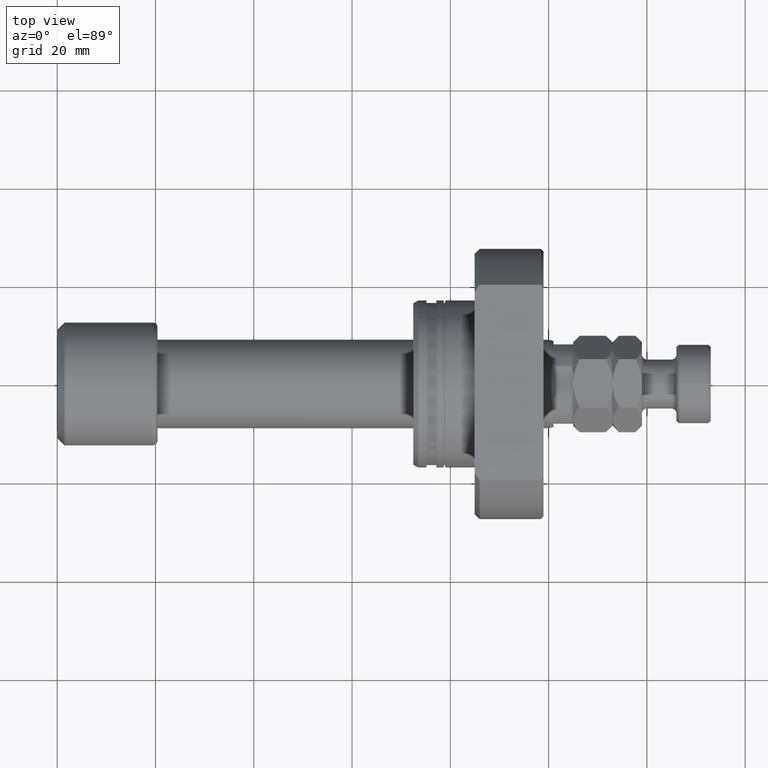
[diagram: clean part render]
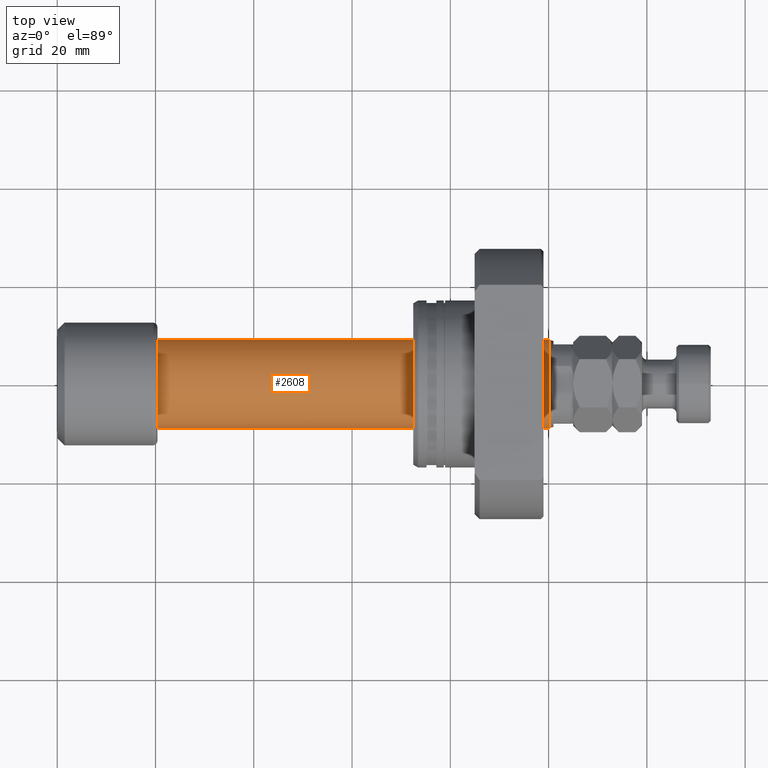
[diagram: same view with one face highlighted and labeled with its STEP entity id]
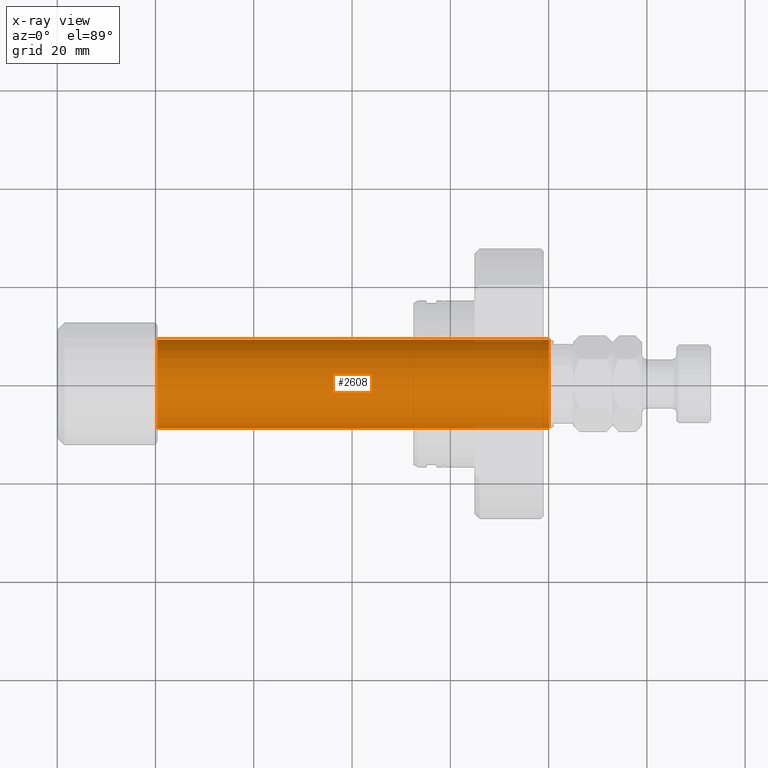
[diagram: x-ray of the same camera — body ghosted, the highlighted face saturated]
A machine part, top view. The second image highlights one B-rep face of the part: STEP entity #2608.
The next image is the same camera in x-ray: the body ghosted, the highlighted face saturated — about 1% of this face is hidden behind the body in this view.
In plain terms, the highlighted cylindrical surface (partial cylindrical patch) has radius 9 mm, axis along (-1, -0, -0).
Its self-contained STEP definition (entity closure, byte-faithful):
#349 = VECTOR ( 'NONE', #3285, 1000.000000000000000 ) ;
#417 = DIRECTION ( 'NONE',  ( -1.000000000000000000, -1.069542322069065801E-17, -0.000000000000000000 ) ) ;
#534 = ORIENTED_EDGE ( 'NONE', *, *, #4745, .F. ) ;
#1133 = CARTESIAN_POINT ( 'NONE',  ( 9.625880898621695591E-17, -9.000000000000095923, 0.000000000000000000 ) ) ;
#1279 = VERTEX_POINT ( 'NONE', #4490 ) ;
#1455 = DIRECTION ( 'NONE',  ( 0.000000000000000000, -1.000000000000000000, 0.000000000000000000 ) ) ;
#1584 = CARTESIAN_POINT ( 'NONE',  ( 0.000000000000000000, 0.000000000000000000, 0.000000000000000000 ) ) ;
#1585 = EDGE_CURVE ( 'NONE', #3094, #2404, #2987, .T. ) ;
#1691 = CARTESIAN_POINT ( 'NONE',  ( 100.0667575123237754, 9.000000000000195399, 1.102182119232641577E-15 ) ) ;
#1821 = CIRCLE ( 'NONE', #4738, 9.000000000000193623 ) ;
#1835 = VERTEX_POINT ( 'NONE', #1691 ) ;
#2058 = AXIS2_PLACEMENT_3D ( 'NONE', #3390, #4826, #1455 ) ;
#2178 = CARTESIAN_POINT ( 'NONE',  ( 100.0667575123237754, -9.000000000000191847, 0.000000000000000000 ) ) ;
#2205 = DIRECTION ( 'NONE',  ( -1.000000000000000000, -1.069542322069065801E-17, -0.000000000000000000 ) ) ;
#2250 = FACE_OUTER_BOUND ( 'NONE', #3063, .T. ) ;
#2404 = VERTEX_POINT ( 'NONE', #3134 ) ;
#2447 = EDGE_CURVE ( 'NONE', #1835, #1279, #4034, .T. ) ;
#2528 = CIRCLE ( 'NONE', #2058, 9.000000000000000000 ) ;
#2608 = ADVANCED_FACE ( 'NONE', ( #2250 ), #2692, .T. ) ;
#2692 = CYLINDRICAL_SURFACE ( 'NONE', #2867, 9.000000000000095923 ) ;
#2867 = AXIS2_PLACEMENT_3D ( 'NONE', #1584, #4598, #4204 ) ;
#2877 = ORIENTED_EDGE ( 'NONE', *, *, #2447, .T. ) ;
#2987 = LINE ( 'NONE', #1133, #4829 ) ;
#3044 = DIRECTION ( 'NONE',  ( 0.000000000000000000, -1.000000000000000000, 0.000000000000000000 ) ) ;
#3063 = EDGE_LOOP ( 'NONE', ( #4574, #2877, #534, #3891 ) ) ;
#3094 = VERTEX_POINT ( 'NONE', #2178 ) ;
#3134 = CARTESIAN_POINT ( 'NONE',  ( 20.39999999999999503, -9.000000000000000000, 0.000000000000000000 ) ) ;
#3285 = DIRECTION ( 'NONE',  ( -1.000000000000000000, -1.069542322069065801E-17, -0.000000000000000000 ) ) ;
#3390 = CARTESIAN_POINT ( 'NONE',  ( 20.39999999999999503, 2.181866337020893623E-16, 0.000000000000000000 ) ) ;
#3891 = ORIENTED_EDGE ( 'NONE', *, *, #1585, .F. ) ;
#4034 = LINE ( 'NONE', #4842, #349 ) ;
#4204 = DIRECTION ( 'NONE',  ( 1.069542322069065955E-17, -1.000000000000000000, 0.000000000000000000 ) ) ;
#4490 = CARTESIAN_POINT ( 'NONE',  ( 20.39999999999999503, 9.000000000000000000, 1.102182119232623630E-15 ) ) ;
#4538 = CARTESIAN_POINT ( 'NONE',  ( 100.0667575123237754, 1.070256321916529121E-15, 0.000000000000000000 ) ) ;
#4574 = ORIENTED_EDGE ( 'NONE', *, *, #4611, .T. ) ;
#4598 = DIRECTION ( 'NONE',  ( -1.000000000000000000, -1.069542322069065801E-17, -0.000000000000000000 ) ) ;
#4611 = EDGE_CURVE ( 'NONE', #3094, #1835, #1821, .T. ) ;
#4738 = AXIS2_PLACEMENT_3D ( 'NONE', #4538, #417, #3044 ) ;
#4745 = EDGE_CURVE ( 'NONE', #2404, #1279, #2528, .T. ) ;
#4826 = DIRECTION ( 'NONE',  ( -1.000000000000000000, -1.069542322069065801E-17, -0.000000000000000000 ) ) ;
#4829 = VECTOR ( 'NONE', #2205, 1000.000000000000000 ) ;
#4842 = CARTESIAN_POINT ( 'NONE',  ( -9.625880898621695591E-17, 9.000000000000095923, 1.102182119232629744E-15 ) ) ;